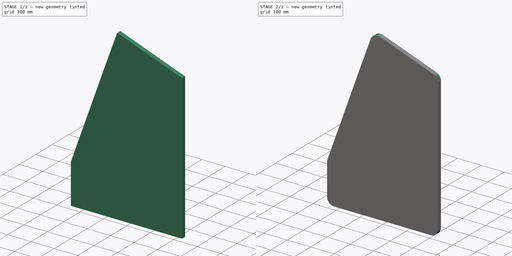
[diagram: build sequence overview — one tinted view per stage of 2, left to right]
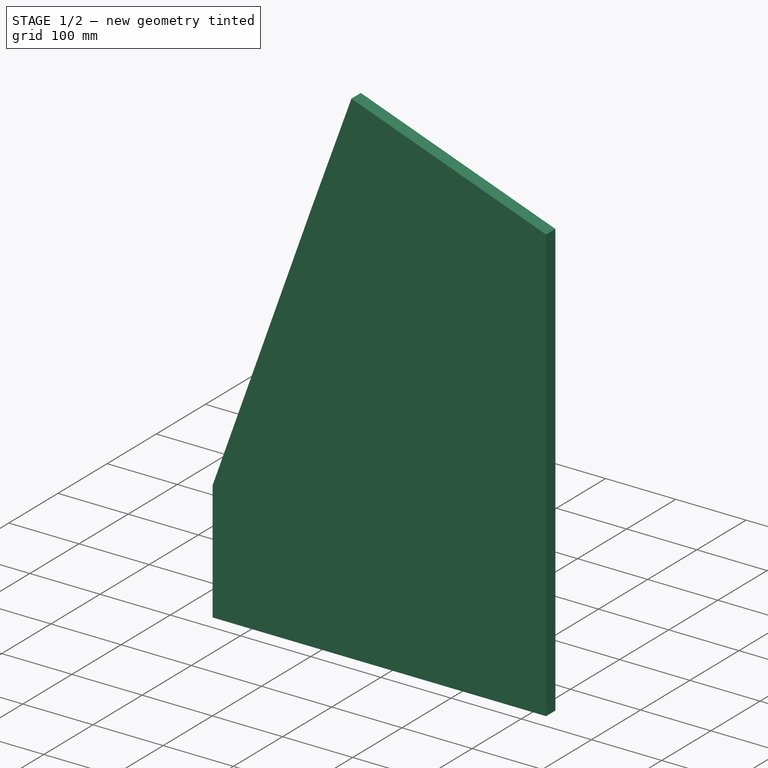
[diagram: stage 1 of 2 — iso view after this stage's code; geometry added in this stage tinted green]
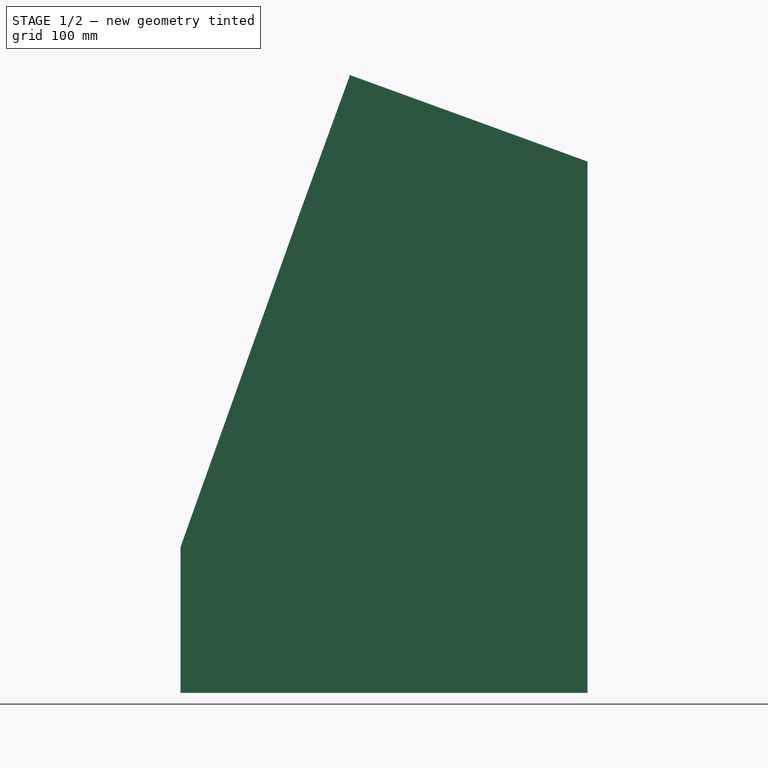
[diagram: stage 1 of 2 — front view after this stage's code; geometry added in this stage tinted green]
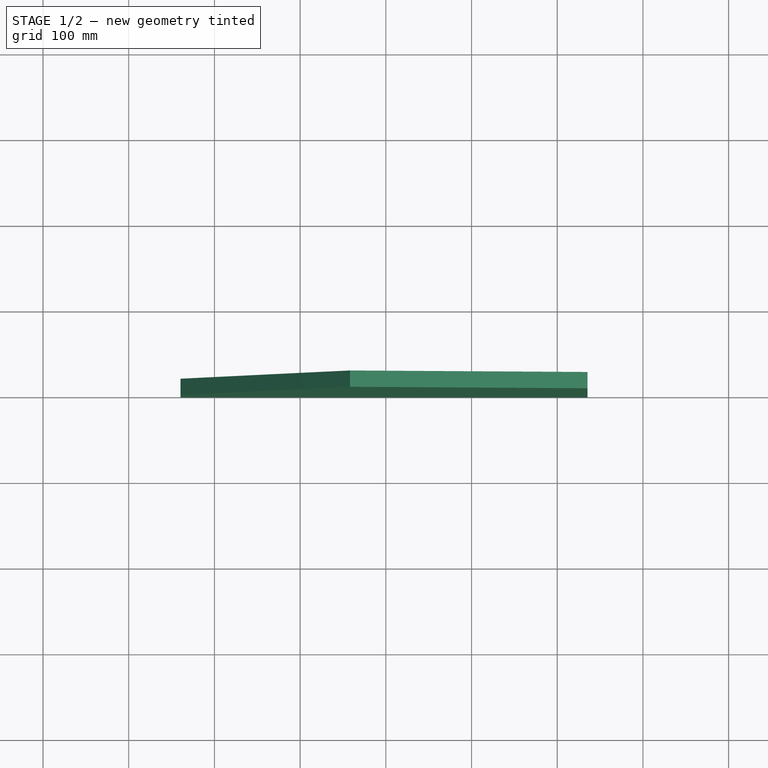
[diagram: stage 1 of 2 — top view after this stage's code; geometry added in this stage tinted green]
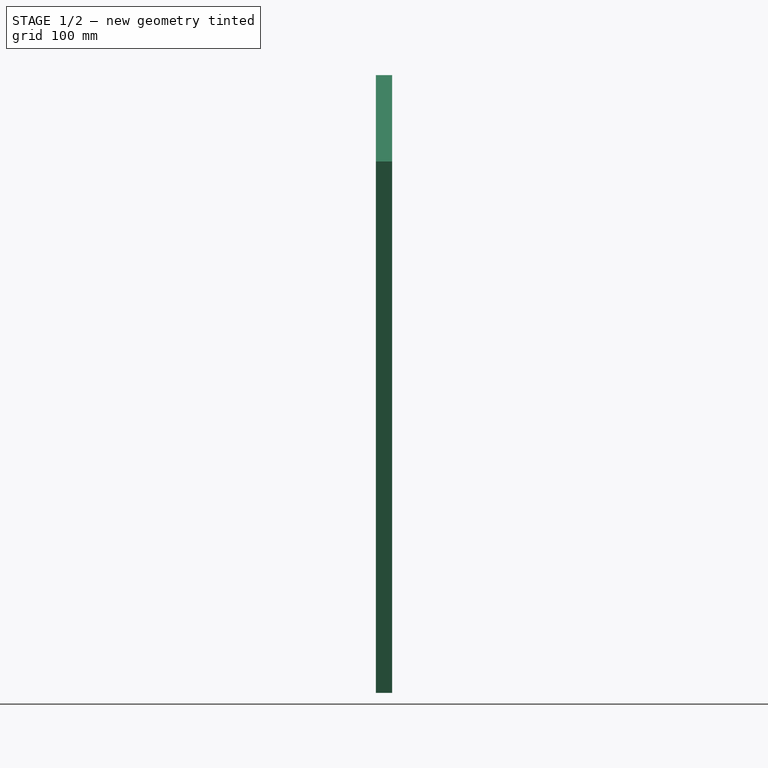
[diagram: stage 1 of 2 — right view after this stage's code; geometry added in this stage tinted green]
FCSTD DOCUMENT  (FreeCAD 0.21R33771 (Git))
Label: 9000_ASM_Profile_Sidewall_Simple
License: All rights reserved
LicenseURL: http://en.wikipedia.org/wiki/All_rights_reserved
objects: TechDraw::DrawViewDimension×11, Sketcher::SketchObject×2, Spreadsheet::Sheet×1, PartDesign::Pad×1, TechDraw::DrawSVGTemplate×1, TechDraw::DrawViewPart×1, TechDraw::DrawPage×1, PartDesign::Fillet×1, PartDesign::Body×1
note: 7 computed .brp shape members not serialized (recipe doc carries the construction recipe); baked Part::Feature solids carry a one-line shape summary decoded from their .brp

FEATURE [Spreadsheet::Sheet] Spreadsheet  label="XLS"
  cells = B2='BODY FLOOR; E2='Ext.Ref; B3='Z=; C3=16; D3='.T; E3='Thichness; B4='Y=; C4=500; D4='.W; E4='Width; B5='X=; C5=400; D5='.D; E5='Depth; B7='Position Side Wall; D8='Left; E8='Right; B9='X0; D9(X0)==+C5; B10='Y0; C10='Y0_2; D10(Y0)==+C4; E10(Y0_2)==+D10 - D11; B11='Z0; D11(Z0)=13; B15='Position Front Wall; B16='x; C16='X0_Front; D16(X0_Front)==+H16 * abs(cos(D19)); F16='Distance on incline; G16='nS; H16(nS)=50; I16='mm; B17='y; C17='Y0_Front; D17(Y0_Front)=0; B18='z; C18='Z0_Front; D18(Z0_Front)==+H16 * abs(sin(D19)) + H18 + H20; F18='Hight of Incline; G18='nH; H18(nH)==125 + 2; I18='mm; B19='angle; C19='angley; D19(angley)=-70; F20='Thickness Material; H20=13; B22='Position Pedastil; B23='x; C23='x_pedastil; D23(x_pedastil)=0; B24='y; C24='y_pedastil; D24(y_pedastil)=0; B25='z; C25='z_pedastil; D25(z_pedastil)=-716; B27='Position Marquee; B28='x; C28==x_pedastil; B29='y; C29==y_pedastil; B30='z; C30==z_pedastil; B31='Incline
FEATURE [Sketcher::SketchObject] Sketch
  FullyConstrained = false
  Placement = pos=(0,0,0) rot=(1,0,0;1.5708rad)
  sketch-geometry (8):
    g0: LineSegment StartX=-18.8859 StartY=-15 StartZ=0 EndX=416.114 EndY=-15 EndZ=0
    g1: LineSegment StartX=416.114 StartY=-15 StartZ=0 EndX=416.114 EndY=575 EndZ=0
    g2: LineSegment StartX=416.114 StartY=575 StartZ=0 EndX=176.973 EndY=663.523 EndZ=0
    g3: LineSegment StartX=176.973 StartY=663.523 StartZ=0 EndX=130.145 EndY=542.25 EndZ=0
    g4: LineSegment StartX=130.145 StartY=542.25 StartZ=0 EndX=271.305 EndY=491.516 EndZ=0
    g5: LineSegment StartX=271.305 StartY=491.516 StartZ=0 EndX=134.264 EndY=115 EndZ=0
    g6: LineSegment StartX=134.264 StartY=115 StartZ=0 EndX=-18.8859 EndY=115 EndZ=0
    g7: LineSegment StartX=-18.8859 StartY=115 StartZ=0 EndX=-18.8859 EndY=-15 EndZ=0
  constraints (20):
    c: Coincident(g0,g1)
    c: Coincident(g1,g2)
    c: Coincident(g2,g3)
    c: Coincident(g3,g4)
    c: Coincident(g4,g5)
    c: Coincident(g5,g6)
    c: Coincident(g6,g7)
    c: Perpendicular(g6,g7)
    c: Vertical(g7)
    c: Angle(g5,g6) = 1.91986
    c: Vertical(g1)
    c: Distance(g2) = 255
    c: Distance(g4) = 150
    c: Distance(g3) = 130
    c: Coincident(g7,g0)
    c: Horizontal(g0)
    c: DistanceY(g7,g7) = 130
    c: Distance(g1) = 590
    c: DistanceX(g0,g0) = 435
    c: DistanceY(g0,g-1) = 15
FEATURE [Sketcher::SketchObject] Sketch001
  FullyConstrained = false
  MapMode = 5
  Placement = pos=(0,0,0) rot=(1,0,0;1.5708rad)
  Support = -> [XZ_Plane]
  sketch-geometry (6):
    g0: LineSegment StartX=-39.6382 StartY=-29.3784 StartZ=0 EndX=-39.6382 EndY=140.622 EndZ=0
    g1: LineSegment StartX=-39.6382 StartY=140.622 StartZ=0 EndX=101.719 EndY=536.468 EndZ=0
    g2: LineSegment StartX=101.719 StartY=536.468 StartZ=0 EndX=158.152 EndY=691.518 EndZ=0
    g3: LineSegment StartX=158.152 StartY=691.518 StartZ=0 EndX=435.362 EndY=590.622 EndZ=0
    g4: LineSegment StartX=435.362 StartY=590.622 StartZ=0 EndX=435.362 EndY=-29.3784 EndZ=0
    g5: LineSegment StartX=435.362 StartY=-29.3784 StartZ=0 EndX=-39.6382 EndY=-29.3784 EndZ=0
  constraints (16):
    c: Coincident(g1,g2)
    c: Coincident(g2,g3)
    c: Coincident(g3,g4)
    c: Coincident(g4,g5)
    c: Coincident(g5,g0)
    c: Horizontal(g5)
    c: Vertical(g4)
    c: Vertical(g0)
    c: Perpendicular(g3,g2)
    c: Angle(g3,g4) = 1.91986
    c: DistanceY(g4,g4) = 620
    c: DistanceX(g5,g5) = 475
    c: DistanceY(g0,g0) = 170
    c: Distance(g3) = 295
    c: Distance(g2) = 165
    c: Coincident(g1,g0)
FEATURE [PartDesign::Pad] Pad
  AllowMultiFace = false
  Direction = (0,-1,-2e-16)
  Length = 19
  Length2 = 100
  Placement = pos=(0,0,0) rot=(1,0,0;1.5708rad)
  Profile = -> Sketch001
  Reversed = true
  Type = 0
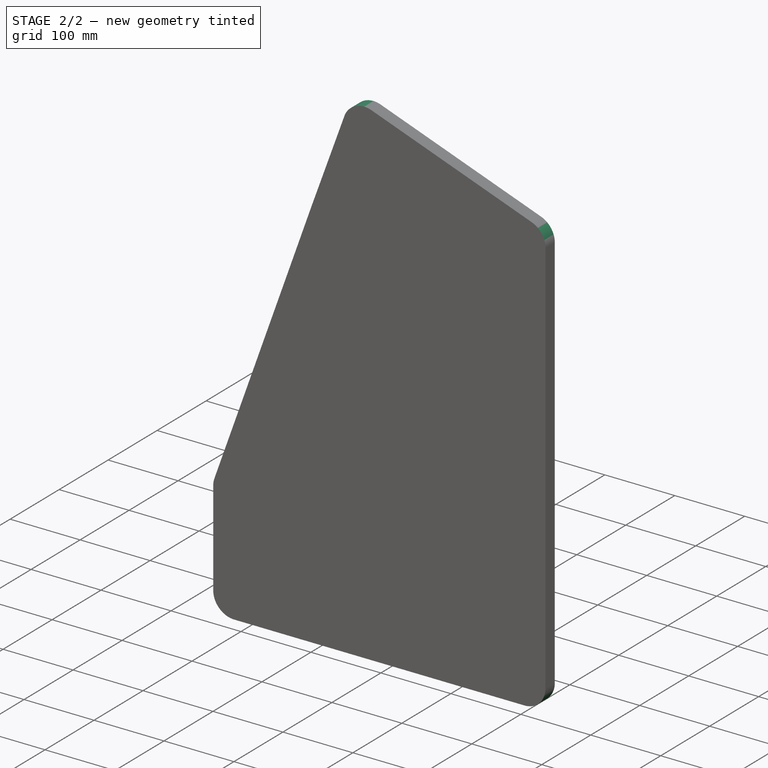
[diagram: stage 2 of 2 — iso view after this stage's code; geometry added in this stage tinted green]
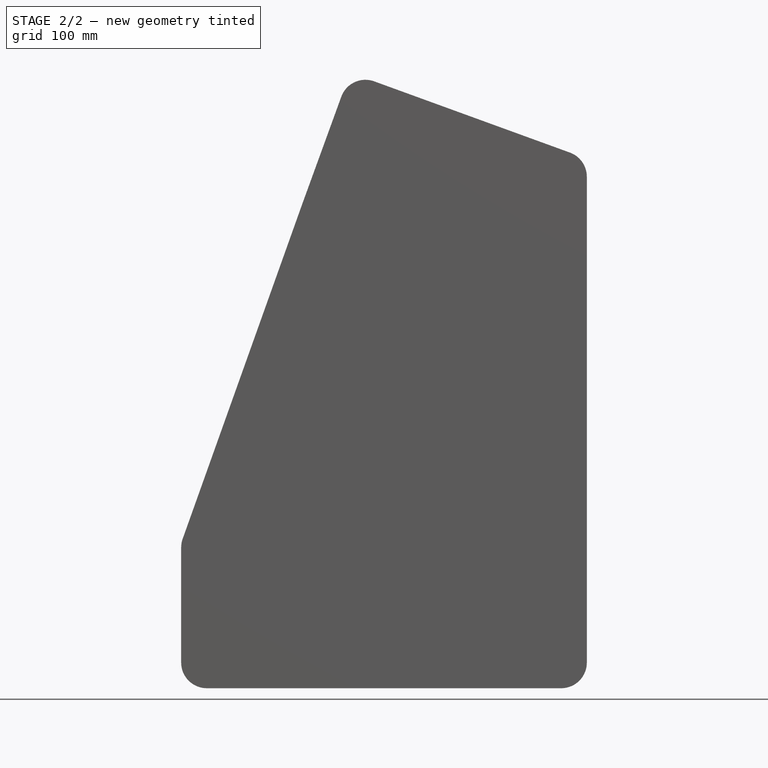
[diagram: stage 2 of 2 — front view after this stage's code; geometry added in this stage tinted green]
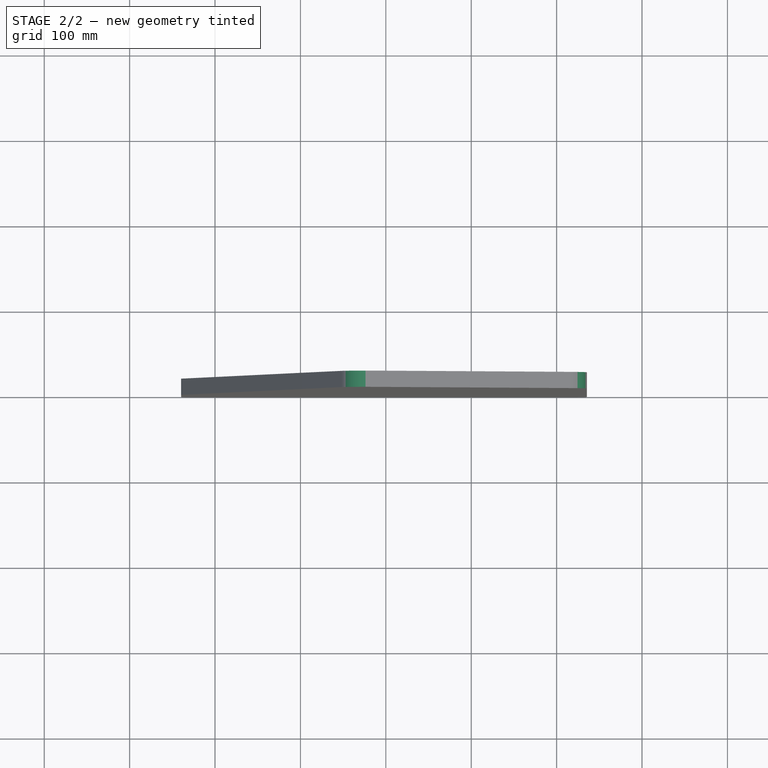
[diagram: stage 2 of 2 — top view after this stage's code; geometry added in this stage tinted green]
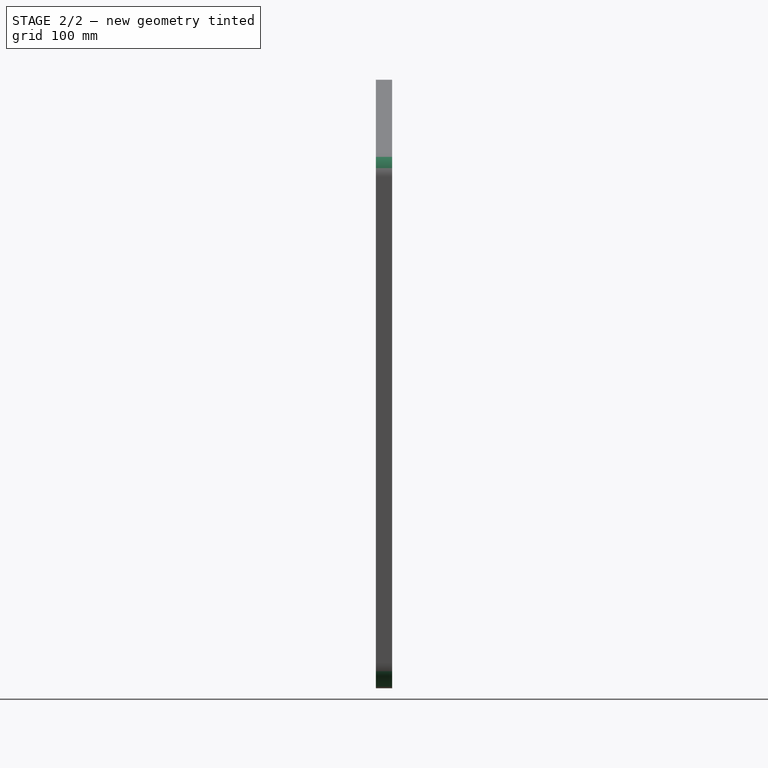
[diagram: stage 2 of 2 — right view after this stage's code; geometry added in this stage tinted green]
FEATURE [TechDraw::DrawSVGTemplate] Template
  EditableTexts = Designed_by_Name=Designed by Name; Drawing_number=Drawing number; FC-Date=Date; FC-SC=Scale; FC-SH=Sheet; FC-Title=Title; Subtitle=Subtitle; Weight=Weight
  Height = 210
  Orientation = 1
  Width = 297
FEATURE [TechDraw::DrawViewPart] View
  CoarseView = false
  Direction = (0,1,0)
  Focus = 100
  HardHidden = false
  IsoCount = 0
  IsoHidden = true
  IsoVisible = true
  LockPosition = false
  Perspective = false
  Rotation = -90
  Scale = 0.2
  ScaleType = 2
  ScrubCount = 0
  SeamHidden = false
  SeamVisible = false
  SmoothHidden = false
  SmoothVisible = false
  Source = -> [Sketch001]
  X = 128.3
  XDirection = (-1,0,0)
  Y = 134.016
FEATURE [TechDraw::DrawViewDimension] Dimension
  AngleOverride = false
  Arbitrary = false
  ArbitraryTolerances = false
  EqualTolerance = false
  ExtensionAngle = 0
  FormatSpec = %.2f
  FormatSpecOverTolerance = %+.2w
  FormatSpecUnderTolerance = %+.2w
  Inverted = false
  LineAngle = 0
  LockPosition = false
  MeasureType = 1
  OverTolerance = 0
  References2D = -> [View]
  Rotation = 0
  ScaleType = 0
  TheoreticalExact = false
  Type = 1
  UnderTolerance = 0
  X = 3.00512
  Y = -57.3431
FEATURE [TechDraw::DrawViewDimension] Dimension001
  AngleOverride = false
  Arbitrary = false
  ArbitraryTolerances = false
  EqualTolerance = false
  ExtensionAngle = 0
  FormatSpec = %.2f
  FormatSpecOverTolerance = %+.2w
  FormatSpecUnderTolerance = %+.2w
  Inverted = false
  LineAngle = 0
  LockPosition = false
  MeasureType = 1
  OverTolerance = 0
  References2D = -> [View]
  Rotation = 0
  ScaleType = 0
  TheoreticalExact = false
  Type = 2
  UnderTolerance = 0
  X = 104.845
  Y = -5.10871
FEATURE [TechDraw::DrawViewDimension] Dimension002
  AngleOverride = false
  Arbitrary = false
  ArbitraryTolerances = false
  EqualTolerance = false
  ExtensionAngle = 0
  FormatSpec = %.2f
  FormatSpecOverTolerance = %+.2w
  FormatSpecUnderTolerance = %+.2w
  Inverted = false
  LineAngle = 0
  LockPosition = false
  MeasureType = 1
  OverTolerance = 0
  References2D = -> [View]
  Rotation = 0
  ScaleType = 0
  TheoreticalExact = false
  Type = 1
  UnderTolerance = 0
  X = 52.8288
  Y = 60.5431
FEATURE [TechDraw::DrawViewDimension] Dimension003
  AngleOverride = false
  Arbitrary = false
  ArbitraryTolerances = false
  EqualTolerance = false
  ExtensionAngle = 0
  FormatSpec = %.2f
  FormatSpecOverTolerance = %+.2w
  FormatSpecUnderTolerance = %+.2w
  Inverted = false
  LineAngle = 0
  LockPosition = false
  MeasureType = 1
  OverTolerance = 0
  References2D = -> [View]
  Rotation = 0
  ScaleType = 0
  TheoreticalExact = false
  Type = 0
  UnderTolerance = 0
  X = -63.7149
  Y = 24.8892
FEATURE [TechDraw::DrawViewDimension] Dimension004
  AngleOverride = false
  Arbitrary = false
  ArbitraryTolerances = false
  EqualTolerance = false
  ExtensionAngle = 0
  FormatSpec = %.2f
  FormatSpecOverTolerance = %+.2w
  FormatSpecUnderTolerance = %+.2w
  Inverted = false
  LineAngle = 0
  LockPosition = false
  MeasureType = 1
  OverTolerance = 0
  References2D = -> [View]
  Rotation = 0
  ScaleType = 0
  TheoreticalExact = false
  Type = 6
  UnderTolerance = 0
  X = -49.7743
  Y = -26.9413
FEATURE [TechDraw::DrawViewDimension] Dimension005
  AngleOverride = false
  Arbitrary = false
  ArbitraryTolerances = false
  EqualTolerance = false
  ExtensionAngle = 0
  FormatSpec = %.2f
  FormatSpecOverTolerance = %+.2w
  FormatSpecUnderTolerance = %+.2w
  Inverted = false
  LineAngle = 0
  LockPosition = false
  MeasureType = 1
  OverTolerance = 0
  References2D = -> [View]
  Rotation = 0
  ScaleType = 0
  TheoreticalExact = false
  Type = 6
  UnderTolerance = 0
  X = 51.5247
  Y = -30.3126
FEATURE [TechDraw::DrawViewDimension] Dimension006
  AngleOverride = false
  Arbitrary = false
  ArbitraryTolerances = false
  EqualTolerance = false
  ExtensionAngle = 0
  FormatSpec = %.2f
  FormatSpecOverTolerance = %+.2w
  FormatSpecUnderTolerance = %+.2w
  Inverted = false
  LineAngle = 0
  LockPosition = false
  MeasureType = 1
  OverTolerance = 0
  References2D = -> [View]
  Rotation = 0
  ScaleType = 0
  TheoreticalExact = false
  Type = 2
  UnderTolerance = 0
  X = -92.8126
  Y = -16.2238
FEATURE [TechDraw::DrawViewDimension] Dimension007
  AngleOverride = false
  Arbitrary = false
  ArbitraryTolerances = false
  EqualTolerance = false
  ExtensionAngle = 0
  FormatSpec = %.2f
  FormatSpecOverTolerance = %+.2w
  FormatSpecUnderTolerance = %+.2w
  Inverted = false
  LineAngle = 0
  LockPosition = false
  MeasureType = 1
  OverTolerance = 0
  References2D = -> [View]
  Rotation = 0
  ScaleType = 0
  TheoreticalExact = false
  Type = 2
  UnderTolerance = 0
  X = -34.1387
  Y = -17.5113
FEATURE [TechDraw::DrawViewDimension] Dimension008
  AngleOverride = false
  Arbitrary = false
  ArbitraryTolerances = false
  EqualTolerance = false
  ExtensionAngle = 0
  FormatSpec = %.2f
  FormatSpecOverTolerance = %+.2w
  FormatSpecUnderTolerance = %+.2w
  Inverted = false
  LineAngle = 0
  LockPosition = false
  MeasureType = 1
  OverTolerance = 0
  References2D = -> [View]
  Rotation = 0
  ScaleType = 0
  TheoreticalExact = false
  Type = 1
  UnderTolerance = 0
  X = 31.6166
  Y = 8.92218
FEATURE [TechDraw::DrawViewDimension] Dimension009
  AngleOverride = false
  Arbitrary = false
  ArbitraryTolerances = false
  EqualTolerance = false
  ExtensionAngle = 0
  FormatSpec = %.2f
  FormatSpecOverTolerance = %+.2w
  FormatSpecUnderTolerance = %+.2w
  Inverted = false
  LineAngle = 0
  LockPosition = false
  MeasureType = 1
  OverTolerance = 0
  References2D = -> [View]
  Rotation = 0
  ScaleType = 0
  TheoreticalExact = false
  Type = 1
  UnderTolerance = 0
  X = 50.5208
  Y = 31.5948
FEATURE [TechDraw::DrawViewDimension] Dimension010
  AngleOverride = false
  Arbitrary = false
  ArbitraryTolerances = false
  EqualTolerance = false
  ExtensionAngle = 0
  FormatSpec = %.2f
  FormatSpecOverTolerance = %+.2w
  FormatSpecUnderTolerance = %+.2w
  Inverted = false
  LineAngle = 0
  LockPosition = false
  MeasureType = 1
  OverTolerance = 0
  References2D = -> [View]
  Rotation = 0
  ScaleType = 0
  TheoreticalExact = false
  Type = 2
  UnderTolerance = 0
  X = 16.7059
  Y = -8.94018
FEATURE [TechDraw::DrawPage] Page
  KeepUpdated = true
  NextBalloonIndex = 1
  ProjectionType = 0
  Template = -> Template
  Views = -> [View,Dimension,Dimension001,Dimension002,Dimension003,Dimension004,Dimension005,Dimension006,Dimension007,Dimension008,Dimension009,Dimension010]
FEATURE [PartDesign::Fillet] Fillet
  Base = -> Pad [Edge2,Edge1,Edge8,Edge11,Edge14]
  BaseFeature = -> Pad
  Placement = pos=(0,0,0) rot=(1,0,0;1.5708rad)
  Radius = 30
  SupportTransform = false
  UseAllEdges = false
FEATURE [PartDesign::Body] Body
  Group = -> [Sketch001,Pad,Fillet]
  Origin = -> Origin
  Tip = -> Fillet
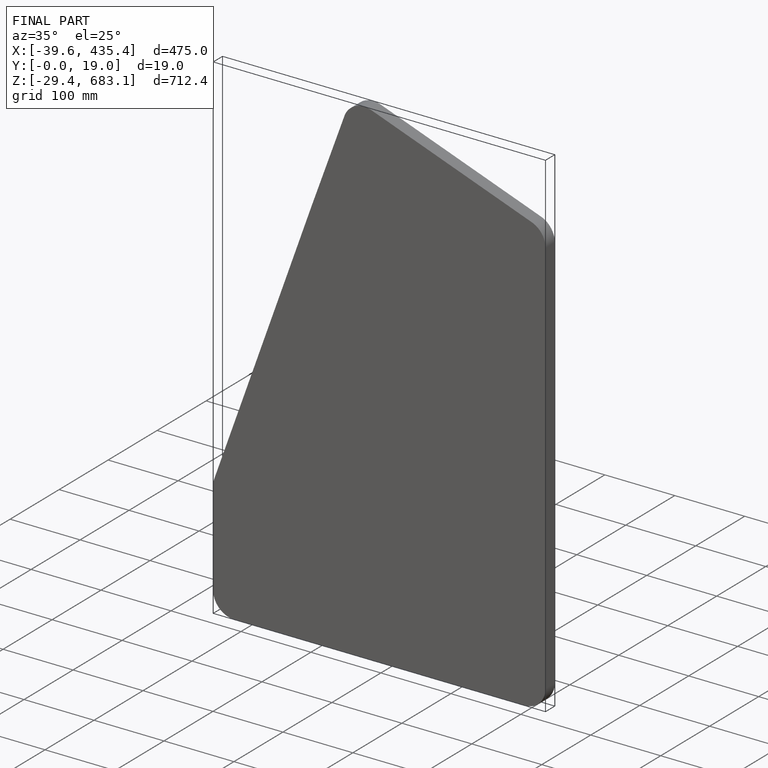
[diagram: finished part — iso view with bounding-box wireframe]
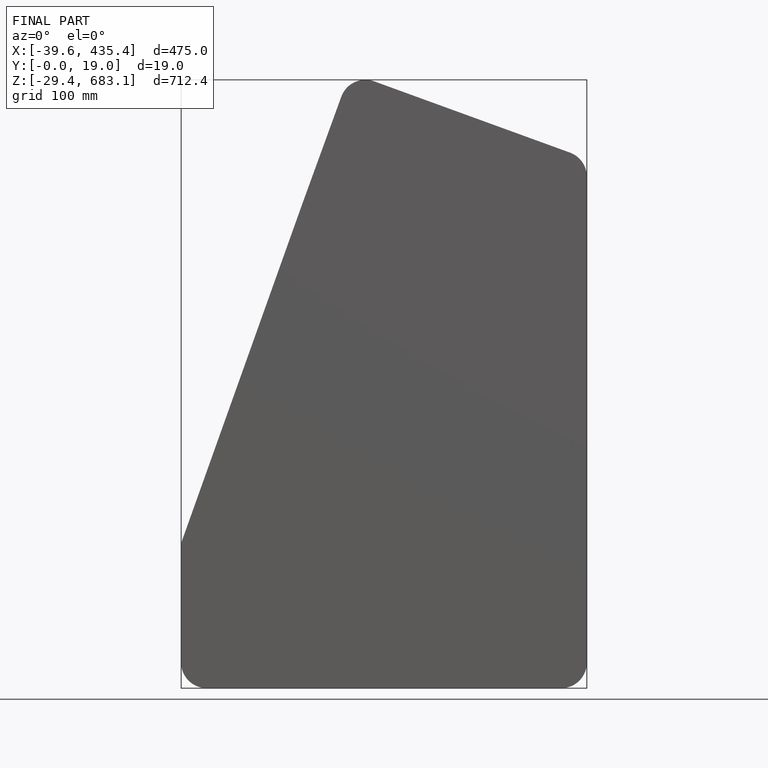
[diagram: finished part — front view with bounding-box wireframe]
